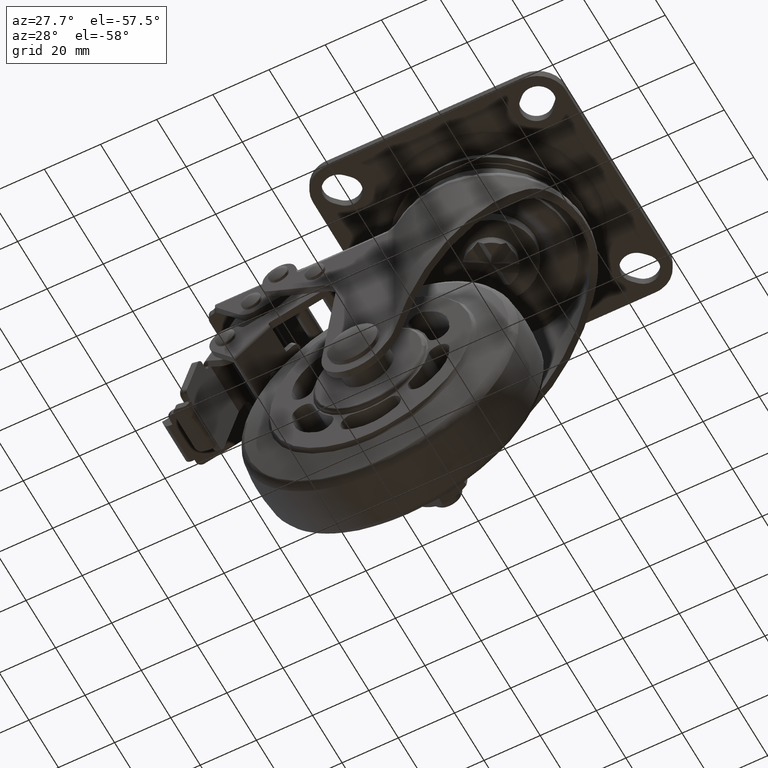
[diagram: clean part render]
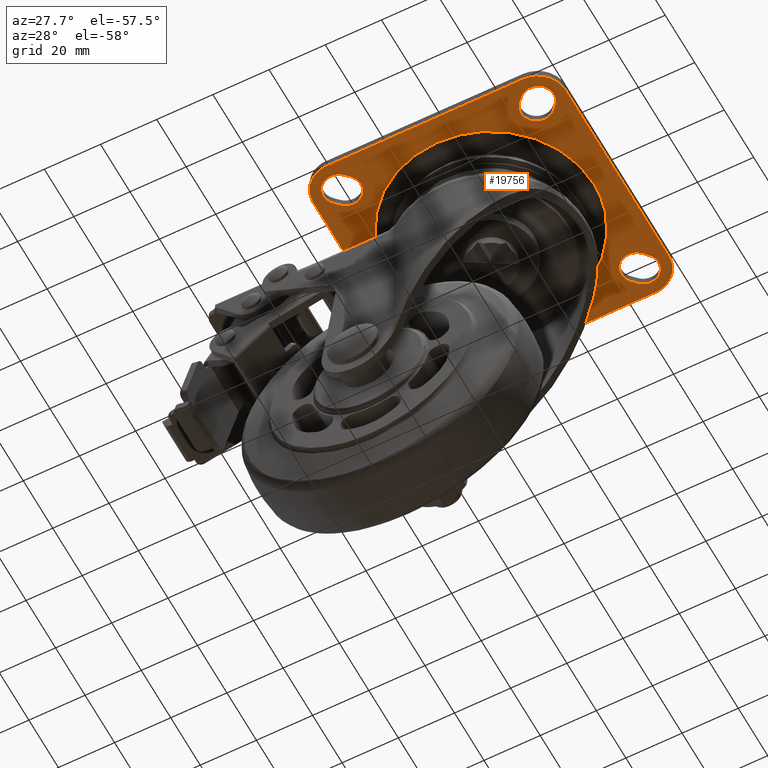
[diagram: same view with one face highlighted and labeled with its STEP entity id]
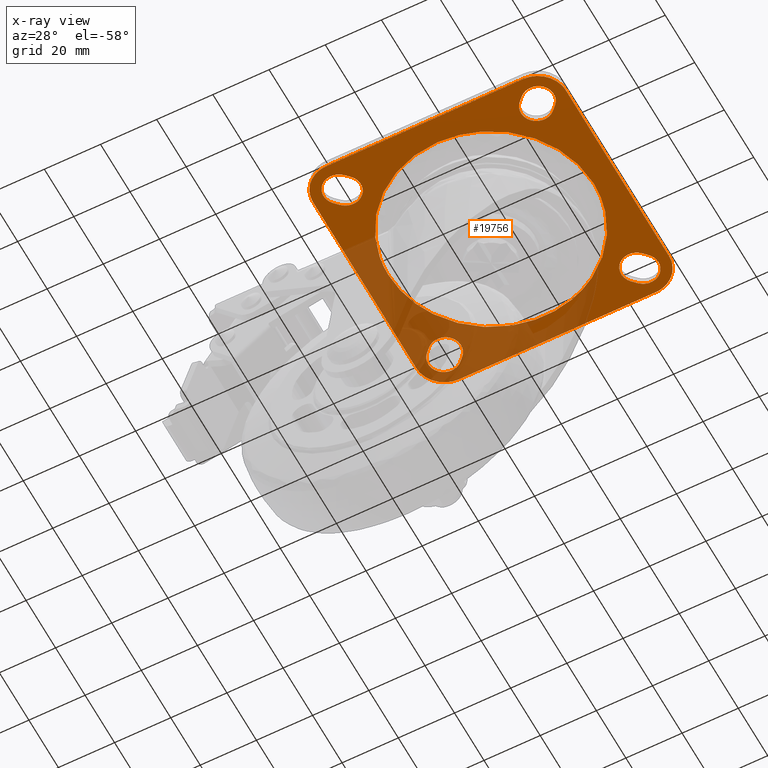
[diagram: x-ray of the same camera — body ghosted, the highlighted face saturated]
A machine part, auxiliary view. The second image highlights one B-rep face of the part: STEP entity #19756.
The next image is the same camera in x-ray: the body ghosted, the highlighted face saturated — about 32% of this face is hidden behind the body in this view.
In plain terms, the highlighted face is a freeform B-spline surface patch.
Its self-contained STEP definition (entity closure, byte-faithful):
#18615=CARTESIAN_POINT('',(54.613267598946372,30.905564446018548,79.000007999975196));
#18616=VERTEX_POINT('',#18615);
#18627=CARTESIAN_POINT('',(71.603745431800704,0.0,79.000007999999994));
#18628=VERTEX_POINT('',#18627);
#18629=CARTESIAN_POINT('',(54.613267598946372,30.905564446018548,79.000007999975196));
#18630=CARTESIAN_POINT('',(56.555310713759368,29.673472720682000,79.000007999978024));
#18631=CARTESIAN_POINT('',(59.216923888092417,27.608265899841470,79.000007999981932));
#18632=CARTESIAN_POINT('',(62.836068395319941,23.902882047228889,79.000007999987290));
#18633=CARTESIAN_POINT('',(65.473038450258272,20.475678680775939,79.000007999990970));
#18634=CARTESIAN_POINT('',(67.627929731302928,16.731772771005911,79.000007999994281));
#18635=CARTESIAN_POINT('',(69.271315206602210,13.053663399226791,79.000007999996811));
#18636=CARTESIAN_POINT('',(70.547244996614424,9.126980863319391,79.000007999997734));
#18637=CARTESIAN_POINT('',(71.410792505331543,4.599745971670136,79.000008000001714));
#18638=CARTESIAN_POINT('',(71.603794586529531,1.533250048020803,79.000007999996981));
#18639=CARTESIAN_POINT('',(71.603745431800704,0.0,79.000007999999994));
#18640=B_SPLINE_CURVE_WITH_KNOTS('',3,(#18629,#18630,#18631,#18632,#18633,#18634,#18635,#18636,#18637,#18638,#18639),.UNSPECIFIED.,.F.,.U.,(4,1,1,1,1,1,1,1,4),(0.000000023397284,6.899653552784507,10.062006840978670,15.524238358012600,19.836488489246850,22.998851644783059,27.598644798269252,32.198437951754762,36.798193054220981),.UNSPECIFIED.);
#18641=EDGE_CURVE('',#18616,#18628,#18640,.T.);
#18643=CARTESIAN_POINT('',(34.999998184335809,-36.603745431800647,79.000007999999994));
#18644=VERTEX_POINT('',#18643);
#18645=CARTESIAN_POINT('',(71.603745431800704,0.0,79.000007999999994));
#18646=CARTESIAN_POINT('',(71.604026945226238,-2.320848732394698,79.000007999999966));
#18647=CARTESIAN_POINT('',(71.217921524355063,-6.363511431477383,79.000008000000236));
#18648=CARTESIAN_POINT('',(69.882633525799250,-11.367018365973760,79.000007999999795));
#18649=CARTESIAN_POINT('',(68.225718549003446,-15.547363186698950,79.000007999999568));
#18650=CARTESIAN_POINT('',(65.926668416587646,-19.848924916474129,79.000008000001344));
#18651=CARTESIAN_POINT('',(62.496674125491268,-24.414986643531140,79.000007999997209));
#18652=CARTESIAN_POINT('',(58.688990316851871,-28.039988102676030,79.000008000000733));
#18653=CARTESIAN_POINT('',(54.455534479346873,-31.139711167007398,79.000007999999568));
#18654=CARTESIAN_POINT('',(49.567834669595364,-33.791080383467133,79.000007999999980));
#18655=CARTESIAN_POINT('',(42.785832611237133,-36.031607869478968,79.000008000000406));
#18656=CARTESIAN_POINT('',(37.770087043394653,-36.604276695405993,79.000008000000221));
#18657=CARTESIAN_POINT('',(34.999998184335809,-36.603745431800647,79.000007999999994));
#18658=B_SPLINE_CURVE_WITH_KNOTS('',3,(#18645,#18646,#18647,#18648,#18649,#18650,#18651,#18652,#18653,#18654,#18655,#18656,#18657),.UNSPECIFIED.,.F.,.U.,(4,1,1,1,1,1,1,1,1,1,4),(0.000000089270806,6.962505909904124,12.128290186633739,15.497276114479689,20.438440080869931,26.727234162567061,32.566724650595937,36.160279672156207,42.449042403232490,49.186998220636362,57.497120090698672),.UNSPECIFIED.);
#18659=EDGE_CURVE('',#18628,#18644,#18658,.T.);
#18661=CARTESIAN_POINT('',(-1.603745431800696,0.0,79.000007999999994));
#18662=VERTEX_POINT('',#18661);
#18663=CARTESIAN_POINT('',(34.999998184335809,-36.603745431800647,79.000007999999994));
#18664=CARTESIAN_POINT('',(33.652429123181719,-36.603763548650043,79.000008000000065));
#18665=CARTESIAN_POINT('',(30.508062452533920,-36.429953281680611,79.000007999999923));
#18666=CARTESIAN_POINT('',(25.120532682218769,-35.427110238917457,79.000007999999994));
#18667=CARTESIAN_POINT('',(19.898141950412828,-33.504139110208079,79.000007999999937));
#18668=CARTESIAN_POINT('',(15.307064914211010,-30.958532806229279,79.000008000000193));
#18669=CARTESIAN_POINT('',(11.902861737014851,-28.497971969577652,79.000007999999596));
#18670=CARTESIAN_POINT('',(8.302213177048804,-25.214593179695790,79.000008000001046));
#18671=CARTESIAN_POINT('',(5.084571700767734,-21.342516481122530,79.000007999999113));
#18672=CARTESIAN_POINT('',(1.959780641368103,-16.129237581723078,79.000008000001515));
#18673=CARTESIAN_POINT('',(-0.035450463958488,-11.095523716912540,79.000007999999482));
#18674=CARTESIAN_POINT('',(-1.317669225627051,-5.465149232980048,79.000008000000022));
#18675=CARTESIAN_POINT('',(-1.603913249846416,-2.021389371324251,79.000008000000136));
#18676=CARTESIAN_POINT('',(-1.603745431800696,0.0,79.000007999999994));
#18677=B_SPLINE_CURVE_WITH_KNOTS('',3,(#18663,#18664,#18665,#18666,#18667,#18668,#18669,#18670,#18671,#18672,#18673,#18674,#18675,#18676),.UNSPECIFIED.,.F.,.U.,(4,1,1,1,1,1,1,1,1,1,1,4),(0.000000089359318,4.042715727334901,9.433120686165147,16.395673144224251,20.663056851058460,25.155038308832840,28.973102644706952,35.261867638725860,40.203048482354092,47.165614060036873,51.432970122402523,57.497118044018883),.UNSPECIFIED.);
#18678=EDGE_CURVE('',#18644,#18662,#18677,.T.);
#18680=CARTESIAN_POINT('',(4.094435553981459,19.613267598946369,79.000007999975210));
#18681=VERTEX_POINT('',#18680);
#18682=CARTESIAN_POINT('',(-1.603745431800696,0.0,79.000007999999994));
#18683=CARTESIAN_POINT('',(-1.603841846170542,1.832723031713598,79.000007999999738));
#18684=CARTESIAN_POINT('',(-1.319803878921320,5.605939413800518,79.000007999999099));
#18685=CARTESIAN_POINT('',(-0.063931164851939,10.976621362004749,79.000007999993485));
#18686=CARTESIAN_POINT('',(1.820030477845950,15.693933595670041,79.000007999984547));
#18687=CARTESIAN_POINT('',(3.343460307687357,18.429964126323569,79.000007999979346));
#18688=CARTESIAN_POINT('',(4.094435553981459,19.613267598946369,79.000007999975210));
#18689=B_SPLINE_CURVE_WITH_KNOTS('',3,(#18682,#18683,#18684,#18685,#18686,#18687,#18688),.UNSPECIFIED.,.F.,.U.,(4,1,1,1,4),(2.782784E-009,5.498171282881536,11.319763781959610,16.494513902863950,20.698997723644819),.UNSPECIFIED.);
#18690=EDGE_CURVE('',#18662,#18681,#18689,.T.);
#18790=CARTESIAN_POINT('',(4.094435553981459,19.613267598946369,79.000007999975210));
#18791=CARTESIAN_POINT('',(5.097214646081564,21.193609933744568,79.000007999978024));
#18792=CARTESIAN_POINT('',(7.211077641337238,24.019511093499659,79.000007999983353));
#18793=CARTESIAN_POINT('',(11.247431718147640,28.048146972836939,79.000007999989862));
#18794=CARTESIAN_POINT('',(15.444258343042570,31.095003665738290,79.000007999993642));
#18795=CARTESIAN_POINT('',(20.621722388540942,33.815161469819628,79.000007999998900));
#18796=CARTESIAN_POINT('',(25.667087858393710,35.562786859572107,79.000007999997706));
#18797=CARTESIAN_POINT('',(31.508793783046809,36.570302173776810,79.000007999998445));
#18798=CARTESIAN_POINT('',(36.314105488615503,36.683595457965311,79.000007999997266));
#18799=CARTESIAN_POINT('',(40.786587919222278,36.210807041227817,79.000007999992349));
#18800=CARTESIAN_POINT('',(44.526899755036091,35.415151882585242,79.000007999989577));
#18801=CARTESIAN_POINT('',(49.299533641468472,33.849580767618761,79.000007999984177));
#18802=CARTESIAN_POINT('',(52.590677254625021,32.189560976770217,79.000007999981364));
#18803=CARTESIAN_POINT('',(54.613267598946372,30.905564446018548,79.000007999975196));
#18804=B_SPLINE_CURVE_WITH_KNOTS('',3,(#18790,#18791,#18792,#18793,#18794,#18795,#18796,#18797,#18798,#18799,#18800,#18801,#18802,#18803),.UNSPECIFIED.,.F.,.U.,(4,1,1,1,1,1,1,1,1,1,1,4),(0.000000089468152,5.614916742008226,10.556093663526481,17.069471235471070,21.112224858043980,28.074797747164240,33.015876002400617,38.855453821431453,42.449041647657978,46.491821824096569,50.310014771044763,57.497119067316632),.UNSPECIFIED.);
#18805=EDGE_CURVE('',#18681,#18616,#18804,.T.);
#19347=CARTESIAN_POINT('',(-14.495499825562540,49.495499825562533,79.000007999999994));
#19348=CARTESIAN_POINT('',(84.495502239550646,49.495499825562533,79.000007999999994));
#19349=CARTESIAN_POINT('',(-14.495499825562540,-49.495502239550653,79.000007999999994));
#19350=CARTESIAN_POINT('',(84.495502239550646,-49.495502239550653,79.000007999999994));
#19351=B_SPLINE_SURFACE_WITH_KNOTS('',1,1,((#19347,#19349),(#19348,#19350)),.UNSPECIFIED.,.F.,.F.,.U.,(2,2),(2,2),(0.0,98.991002065113179),(0.0,98.991002065113179),.UNSPECIFIED.);
#19352=CARTESIAN_POINT('',(80.0,35.0,79.000007999999994));
#19353=VERTEX_POINT('',#19352);
#19354=CARTESIAN_POINT('',(70.0,45.0,79.000007999999994));
#19355=VERTEX_POINT('',#19354);
#19356=CARTESIAN_POINT('',(80.0,35.0,79.000007999999994));
#19357=CARTESIAN_POINT('',(80.000073907968613,35.654488945471627,79.000008000000108));
#19358=CARTESIAN_POINT('',(79.867023230522705,37.004367228682113,79.000007999999681));
#19359=CARTESIAN_POINT('',(79.209497551188122,39.125826772463860,79.000008000000378));
#19360=CARTESIAN_POINT('',(78.034143133678441,41.114244687521321,79.000007999999724));
#19361=CARTESIAN_POINT('',(76.338292263899874,42.852220574667271,79.000008000000761));
#19362=CARTESIAN_POINT('',(74.423159077679401,44.064941585787011,79.000007999999468));
#19363=CARTESIAN_POINT('',(72.249772190104053,44.827454906135067,79.000008000000747));
#19364=CARTESIAN_POINT('',(70.777227325805129,45.000144159784767,79.000007999999212));
#19365=CARTESIAN_POINT('',(70.0,45.0,79.000007999999994));
#19366=B_SPLINE_CURVE_WITH_KNOTS('',3,(#19356,#19357,#19358,#19359,#19360,#19361,#19362,#19363,#19364,#19365),.UNSPECIFIED.,.F.,.U.,(4,1,1,1,1,1,1,4),(0.000000162030521,1.963473488997209,4.049735908099901,6.626885396654943,8.835779466863569,11.290160716892750,13.376402627561211,15.708061828758940),.UNSPECIFIED.);
#19367=EDGE_CURVE('',#19353,#19355,#19366,.T.);
#19368=ORIENTED_EDGE('',*,*,#19367,.F.);
#19369=CARTESIAN_POINT('',(80.0,-35.0,79.000007999999994));
#19370=VERTEX_POINT('',#19369);
#19371=CARTESIAN_POINT('',(80.0,-35.0,79.000007999999994));
#19372=CARTESIAN_POINT('',(80.0,35.0,79.000007999999994));
#19373=QUASI_UNIFORM_CURVE('',1,(#19371,#19372),.UNSPECIFIED.,.F.,.U.);
#19374=EDGE_CURVE('',#19370,#19353,#19373,.T.);
#19375=ORIENTED_EDGE('',*,*,#19374,.F.);
#19376=CARTESIAN_POINT('',(70.0,-45.0,79.000007999999994));
#19377=VERTEX_POINT('',#19376);
#19378=CARTESIAN_POINT('',(70.0,-45.0,79.000007999999994));
#19379=CARTESIAN_POINT('',(70.654491713493385,-45.000083564249380,79.000007999999852));
#19380=CARTESIAN_POINT('',(71.840729655913378,-44.883093706141580,79.000008000000363));
#19381=CARTESIAN_POINT('',(73.735952833826801,-44.346249776582830,79.000007999999923));
#19382=CARTESIAN_POINT('',(75.386183723378181,-43.502777694459901,79.000007999999681));
#19383=CARTESIAN_POINT('',(76.995996078140109,-42.230513810341002,79.000008000000406));
#19384=CARTESIAN_POINT('',(78.393959541517816,-40.610058543014922,79.000007999999823));
#19385=CARTESIAN_POINT('',(79.388853167542479,-38.663513669082420,79.000007999999994));
#19386=CARTESIAN_POINT('',(79.901318878623826,-36.718016581546571,79.000008000000037));
#19387=CARTESIAN_POINT('',(80.000045159082930,-35.572675513106489,79.000008000000506));
#19388=CARTESIAN_POINT('',(80.0,-35.0,79.000007999999994));
#19389=B_SPLINE_CURVE_WITH_KNOTS('',3,(#19378,#19379,#19380,#19381,#19382,#19383,#19384,#19385,#19386,#19387,#19388),.UNSPECIFIED.,.F.,.U.,(4,1,1,1,1,1,1,1,4),(0.000000162004154,1.963473488975795,3.558856671220649,5.890528280057204,7.485920371103386,9.694802587288667,12.271932114299780,13.990030007249290,15.708061828758900),.UNSPECIFIED.);
#19390=EDGE_CURVE('',#19377,#19370,#19389,.T.);
#19391=ORIENTED_EDGE('',*,*,#19390,.F.);
#19392=CARTESIAN_POINT('',(-0.000000523598811,-45.0,79.000007999999994));
#19393=VERTEX_POINT('',#19392);
#19394=CARTESIAN_POINT('',(-0.000000523598811,-45.0,79.000007999999994));
#19395=CARTESIAN_POINT('',(70.0,-45.0,79.000007999999994));
#19396=QUASI_UNIFORM_CURVE('',1,(#19394,#19395),.UNSPECIFIED.,.F.,.U.);
#19397=EDGE_CURVE('',#19393,#19377,#19396,.T.);
#19398=ORIENTED_EDGE('',*,*,#19397,.F.);
#19399=CARTESIAN_POINT('',(-10.0,-35.0,79.000007999999994));
#19400=VERTEX_POINT('',#19399);
#19401=CARTESIAN_POINT('',(-10.0,-35.0,79.000007999999994));
#19402=CARTESIAN_POINT('',(-10.000087719365281,-35.654494619467052,79.000008000000108));
#19403=CARTESIAN_POINT('',(-9.875052239546488,-36.922547782301969,79.000007999999909));
#19404=CARTESIAN_POINT('',(-9.314351404740435,-38.812987640436610,79.000007999999809));
#19405=CARTESIAN_POINT('',(-8.451840209598522,-40.450553902006959,79.000008000000435));
#19406=CARTESIAN_POINT('',(-7.128824911233999,-42.124901798963911,79.000007999999895));
#19407=CARTESIAN_POINT('',(-5.469561627012606,-43.486616478168777,79.000007999999880));
#19408=CARTESIAN_POINT('',(-3.430478861005152,-44.466183805952497,79.000007999999596));
#19409=CARTESIAN_POINT('',(-1.636246830333949,-44.915557114707987,79.000008000000477));
#19410=CARTESIAN_POINT('',(-0.490867129498766,-45.000008033708703,79.000007999999852));
#19411=CARTESIAN_POINT('',(-0.000000523598811,-45.0,79.000007999999994));
#19412=B_SPLINE_CURVE_WITH_KNOTS('',3,(#19401,#19402,#19403,#19404,#19405,#19406,#19407,#19408,#19409,#19410,#19411),.UNSPECIFIED.,.F.,.U.,(4,1,1,1,1,1,1,1,4),(0.000000162090448,1.963473452165475,3.804294831523768,5.890528169568537,7.485920230384032,10.185690012094121,12.271931883708019,14.235442829655661,15.708061533648239),.UNSPECIFIED.);
#19413=EDGE_CURVE('',#19400,#19393,#19412,.T.);
#19414=ORIENTED_EDGE('',*,*,#19413,.F.);
#19415=CARTESIAN_POINT('',(-10.0,34.999999127335300,79.000007999999994));
#19416=VERTEX_POINT('',#19415);
#19417=CARTESIAN_POINT('',(-10.0,34.999999127335300,79.000007999999994));
#19418=CARTESIAN_POINT('',(-10.0,-35.0,79.000007999999994));
#19419=QUASI_UNIFORM_CURVE('',1,(#19417,#19418),.UNSPECIFIED.,.F.,.U.);
#19420=EDGE_CURVE('',#19416,#19400,#19419,.T.);
#19421=ORIENTED_EDGE('',*,*,#19420,.F.);
#19422=CARTESIAN_POINT('',(0.0,45.0,79.000007999999994));
#19423=VERTEX_POINT('',#19422);
#19424=CARTESIAN_POINT('',(0.0,45.0,79.000007999999994));
#19425=CARTESIAN_POINT('',(-0.654493621104882,45.000087204553843,79.000008000000037));
#19426=CARTESIAN_POINT('',(-1.922548140982958,44.875051779595012,79.000007999999895));
#19427=CARTESIAN_POINT('',(-3.812990438692153,44.314354172619687,79.000008000000065));
#19428=CARTESIAN_POINT('',(-5.450576844904203,43.451856365813349,79.000008000000108));
#19429=CARTESIAN_POINT('',(-6.899337997425581,42.306792718092360,79.000007999999610));
#19430=CARTESIAN_POINT('',(-8.269547663141669,40.776571859568882,79.000008000000179));
#19431=CARTESIAN_POINT('',(-9.304631255347635,38.896129306924472,79.000007999999937));
#19432=CARTESIAN_POINT('',(-9.886663822560374,36.840731712888847,79.000008000000079));
#19433=CARTESIAN_POINT('',(-10.000061135719999,35.613588896330008,79.000007999999909));
#19434=CARTESIAN_POINT('',(-10.0,34.999999127335300,79.000007999999994));
#19435=B_SPLINE_CURVE_WITH_KNOTS('',3,(#19424,#19425,#19426,#19427,#19428,#19429,#19430,#19431,#19432,#19433,#19434),.UNSPECIFIED.,.F.,.U.,(4,1,1,1,1,1,1,1,4),(0.000000161852675,1.963473550318764,3.804295021906183,5.890528464199390,7.485920605631939,9.326650025769581,12.026485992671390,13.867290678295850,15.708062320610400),.UNSPECIFIED.);
#19436=EDGE_CURVE('',#19423,#19416,#19435,.T.);
#19437=ORIENTED_EDGE('',*,*,#19436,.F.);
#19438=CARTESIAN_POINT('',(70.0,45.0,79.000007999999994));
#19439=CARTESIAN_POINT('',(0.0,45.0,79.000007999999994));
#19440=QUASI_UNIFORM_CURVE('',1,(#19438,#19439),.UNSPECIFIED.,.F.,.U.);
#19441=EDGE_CURVE('',#19355,#19423,#19440,.T.);
#19442=ORIENTED_EDGE('',*,*,#19441,.F.);
#19443=EDGE_LOOP('',(#19368,#19375,#19391,#19398,#19414,#19421,#19437,#19442));
#19444=FACE_OUTER_BOUND('',#19443,.T.);
#19445=CARTESIAN_POINT('',(3.389087228648650,39.389087364403352,79.000007999999994));
#19446=VERTEX_POINT('',#19445);
#19447=CARTESIAN_POINT('',(4.889087228648620,37.889087364403402,79.000007999999994));
#19448=VERTEX_POINT('',#19447);
#19449=CARTESIAN_POINT('',(3.389087228648650,39.389087364403352,79.000007999999994));
#19450=CARTESIAN_POINT('',(4.889087228648620,37.889087364403402,79.000007999999994));
#19451=QUASI_UNIFORM_CURVE('',1,(#19449,#19450),.UNSPECIFIED.,.F.,.U.);
#19452=EDGE_CURVE('',#19446,#19448,#19451,.T.);
#19453=ORIENTED_EDGE('',*,*,#19452,.F.);
#19454=CARTESIAN_POINT('',(-4.389088323057218,39.389086269994081,79.000007999999994));
#19455=VERTEX_POINT('',#19454);
#19456=CARTESIAN_POINT('',(3.389087228648650,39.389087364403352,79.000007999999994));
#19457=CARTESIAN_POINT('',(3.055098324279005,39.723279301758552,79.000008000000506));
#19458=CARTESIAN_POINT('',(2.336185186602843,40.276958136937523,79.000007999999170));
#19459=CARTESIAN_POINT('',(1.131857726500865,40.802043234911707,79.000008000000449));
#19460=CARTESIAN_POINT('',(-0.203388453981213,41.050716403090512,79.000007999999625));
#19461=CARTESIAN_POINT('',(-1.382240818225911,40.971029110265633,79.000008000000847));
#19462=CARTESIAN_POINT('',(-2.532128906720855,40.645117858646309,79.000007999999127));
#19463=CARTESIAN_POINT('',(-3.485979432978963,40.172291785012760,79.000008000000335));
#19464=CARTESIAN_POINT('',(-4.118680349036415,39.659562838249570,79.000007999999994));
#19465=CARTESIAN_POINT('',(-4.389088323057218,39.389086269994081,79.000007999999994));
#19466=B_SPLINE_CURVE_WITH_KNOTS('',3,(#19456,#19457,#19458,#19459,#19460,#19461,#19462,#19463,#19464,#19465),.UNSPECIFIED.,.F.,.U.,(4,1,1,1,1,1,1,4),(0.000000205425907,1.417387268921277,2.699837969852504,3.914793950122056,5.467111641987454,6.209585932279865,7.492040017143624,8.639434363327512),.UNSPECIFIED.);
#19467=EDGE_CURVE('',#19446,#19455,#19466,.T.);
#19468=ORIENTED_EDGE('',*,*,#19467,.T.);
#19469=CARTESIAN_POINT('',(-4.389086000000001,31.610914000000040,79.000007999999994));
#19470=VERTEX_POINT('',#19469);
#19471=CARTESIAN_POINT('',(-4.389088323057218,39.389086269994081,79.000007999999994));
#19472=CARTESIAN_POINT('',(-4.659555491126680,39.118668605058389,79.000008000000079));
#19473=CARTESIAN_POINT('',(-5.229342674662291,38.415711125186590,79.000007999999923));
#19474=CARTESIAN_POINT('',(-5.785604509680929,37.220928273118822,79.000008000000022));
#19475=CARTESIAN_POINT('',(-6.013271795639411,35.996907582543344,79.000008000000122));
#19476=CARTESIAN_POINT('',(-5.999425763980547,34.867921374764073,79.000007999999468));
#19477=CARTESIAN_POINT('',(-5.774435483181895,33.804975636045647,79.000008000001159));
#19478=CARTESIAN_POINT('',(-5.261379730992126,32.647565546629579,79.000007999998459));
#19479=CARTESIAN_POINT('',(-4.739201355990047,31.960801957857331,79.000008000000548));
#19480=CARTESIAN_POINT('',(-4.389086000000001,31.610914000000040,79.000007999999994));
#19481=B_SPLINE_CURVE_WITH_KNOTS('',3,(#19471,#19472,#19473,#19474,#19475,#19476,#19477,#19478,#19479,#19480),.UNSPECIFIED.,.F.,.U.,(4,1,1,1,1,1,1,4),(0.000000206227456,1.147409377229230,2.699837152982105,3.914792764930660,4.859630259466681,6.074590765410894,7.154536857788865,8.639431747543750),.UNSPECIFIED.);
#19482=EDGE_CURVE('',#19455,#19470,#19481,.T.);
#19483=ORIENTED_EDGE('',*,*,#19482,.T.);
#19484=CARTESIAN_POINT('',(-2.889087296525990,30.110912703473950,79.000007999999994));
#19485=VERTEX_POINT('',#19484);
#19486=CARTESIAN_POINT('',(-2.889087296525990,30.110912703473950,79.000007999999994));
#19487=CARTESIAN_POINT('',(-4.389086000000001,31.610914000000040,79.000007999999994));
#19488=QUASI_UNIFORM_CURVE('',1,(#19486,#19487),.UNSPECIFIED.,.F.,.U.);
#19489=EDGE_CURVE('',#19485,#19470,#19488,.T.);
#19490=ORIENTED_EDGE('',*,*,#19489,.F.);
#19491=CARTESIAN_POINT('',(4.889087342201306,30.110912749149289,79.000007999999980));
#19492=VERTEX_POINT('',#19491);
#19493=CARTESIAN_POINT('',(-2.889087296525990,30.110912703473950,79.000007999999994));
#19494=CARTESIAN_POINT('',(-2.555080533373291,29.776754833366429,79.000007999999966));
#19495=CARTESIAN_POINT('',(-1.764345029301170,29.167550867857059,79.000008000000477));
#19496=CARTESIAN_POINT('',(-0.459503242915323,28.636345288663481,79.000007999998559));
#19497=CARTESIAN_POINT('',(0.796640422228881,28.465926517314351,79.000008000002182));
#19498=CARTESIAN_POINT('',(1.946310795769875,28.543634914953081,79.000007999998431));
#19499=CARTESIAN_POINT('',(2.906180183911404,28.809272490325451,79.000008000000221));
#19500=CARTESIAN_POINT('',(3.942798980214223,29.307352648186040,79.000008000001557));
#19501=CARTESIAN_POINT('',(4.539198351572569,29.760789884785119,79.000007999998871));
#19502=CARTESIAN_POINT('',(4.889087342201306,30.110912749149289,79.000007999999980));
#19503=B_SPLINE_CURVE_WITH_KNOTS('',3,(#19493,#19494,#19495,#19496,#19497,#19498,#19499,#19500,#19501,#19502),.UNSPECIFIED.,.F.,.U.,(4,1,1,1,1,1,1,4),(0.000000205965737,1.417387216606544,2.969815818072879,4.184753146777508,5.197134105830720,6.412079451530653,7.154538758477041,8.639434042239317),.UNSPECIFIED.);
#19504=EDGE_CURVE('',#19485,#19492,#19503,.T.);
#19505=ORIENTED_EDGE('',*,*,#19504,.T.);
#19506=CARTESIAN_POINT('',(4.889087342201306,30.110912749149289,79.000007999999980));
#19507=CARTESIAN_POINT('',(5.223245070723703,30.444919452044012,79.000007999999994));
#19508=CARTESIAN_POINT('',(5.832449672715840,31.235655139321139,79.000007999999809));
#19509=CARTESIAN_POINT('',(6.363636434777557,32.540494136456623,79.000008000000022));
#19510=CARTESIAN_POINT('',(6.561617162362553,33.998548744560850,79.000008000000307));
#19511=CARTESIAN_POINT('',(6.400218564128740,35.307659300866369,79.000008000000008));
#19512=CARTESIAN_POINT('',(5.863065048257463,36.699760297963202,79.000007999999795));
#19513=CARTESIAN_POINT('',(5.302989728717164,37.475672755516477,79.000008000000776));
#19514=CARTESIAN_POINT('',(4.889087228648620,37.889087364403402,79.000007999999994));
#19515=B_SPLINE_CURVE_WITH_KNOTS('',3,(#19506,#19507,#19508,#19509,#19510,#19511,#19512,#19513,#19514),.UNSPECIFIED.,.F.,.U.,(4,1,1,1,1,1,4),(0.000000205958507,1.417387213529731,2.969815811631286,4.184753137689488,5.804612404637249,6.884558781507911,8.639434023529429),.UNSPECIFIED.);
#19516=EDGE_CURVE('',#19492,#19448,#19515,.T.);
#19517=ORIENTED_EDGE('',*,*,#19516,.T.);
#19518=EDGE_LOOP('',(#19453,#19468,#19483,#19490,#19505,#19517));
#19519=FACE_BOUND('',#19518,.T.);
#19520=CARTESIAN_POINT('',(66.607738373298801,-39.385910373298699,79.000007999999994));
#19521=VERTEX_POINT('',#19520);
#19522=CARTESIAN_POINT('',(65.110912431964309,-37.889087025016451,79.000007999999994));
#19523=VERTEX_POINT('',#19522);
#19524=CARTESIAN_POINT('',(66.607738373298801,-39.385910373298699,79.000007999999994));
#19525=CARTESIAN_POINT('',(65.110912431964309,-37.889087025016451,79.000007999999994));
#19526=QUASI_UNIFORM_CURVE('',1,(#19524,#19525),.UNSPECIFIED.,.F.,.U.);
#19527=EDGE_CURVE('',#19521,#19523,#19526,.T.);
#19528=ORIENTED_EDGE('',*,*,#19527,.F.);
#19529=CARTESIAN_POINT('',(74.387499522393810,-39.390674422200789,79.000007999999994));
#19530=VERTEX_POINT('',#19529);
#19531=CARTESIAN_POINT('',(66.607738373298801,-39.385910373298699,79.000007999999994));
#19532=CARTESIAN_POINT('',(66.877995801908995,-39.656686249061757,79.000008000000008));
#19533=CARTESIAN_POINT('',(67.492899008127992,-40.155765488624262,79.000007999999966));
#19534=CARTESIAN_POINT('',(68.422850084545487,-40.624739341531843,79.000008000000491));
#19535=CARTESIAN_POINT('',(69.395775271310185,-40.914056276221167,79.000007999999028));
#19536=CARTESIAN_POINT('',(70.338288020088356,-41.030944483150002,79.000008000001827));
#19537=CARTESIAN_POINT('',(71.443210420080234,-40.956923406941300,79.000007999998729));
#19538=CARTESIAN_POINT('',(72.403490743813649,-40.691746502318622,79.000008000000534));
#19539=CARTESIAN_POINT('',(73.440606766108161,-40.194008253552347,79.000007999999781));
#19540=CARTESIAN_POINT('',(74.037380900446692,-39.740757793626067,79.000007999999966));
#19541=CARTESIAN_POINT('',(74.387499522393810,-39.390674422200789,79.000007999999994));
#19542=B_SPLINE_CURVE_WITH_KNOTS('',3,(#19531,#19532,#19533,#19534,#19535,#19536,#19537,#19538,#19539,#19540,#19541),.UNSPECIFIED.,.F.,.U.,(4,1,1,1,1,1,1,1,4),(0.000000206262053,1.147704755549581,2.362960223420184,3.105604897948387,4.185840696148085,5.198484983342862,6.413746150786556,7.156398453737694,8.641679703932713),.UNSPECIFIED.);
#19543=EDGE_CURVE('',#19521,#19530,#19542,.T.);
#19544=ORIENTED_EDGE('',*,*,#19543,.T.);
#19545=CARTESIAN_POINT('',(74.389088999999899,-31.610912000000098,79.000007999999994));
#19546=VERTEX_POINT('',#19545);
#19547=CARTESIAN_POINT('',(74.387499522393810,-39.390674422200789,79.000007999999994));
#19548=CARTESIAN_POINT('',(74.721848172305286,-39.056704818619423,79.000007999999937));
#19549=CARTESIAN_POINT('',(75.359377387074133,-38.230109354843719,79.000008000000278));
#19550=CARTESIAN_POINT('',(75.884246256723372,-36.895092743508229,79.000007999999227));
#19551=CARTESIAN_POINT('',(76.031682415339802,-35.636529438004260,79.000008000001273));
#19552=CARTESIAN_POINT('',(75.950488197622519,-34.532732809349831,79.000007999999212));
#19553=CARTESIAN_POINT('',(75.660819495844407,-33.485247644818010,79.000007999999994));
#19554=CARTESIAN_POINT('',(75.129690623683970,-32.461553952365669,79.000008000000776));
#19555=CARTESIAN_POINT('',(74.659647643655731,-31.881383756823539,79.000007999998772));
#19556=CARTESIAN_POINT('',(74.389088999999899,-31.610912000000098,79.000007999999994));
#19557=B_SPLINE_CURVE_WITH_KNOTS('',3,(#19547,#19548,#19549,#19550,#19551,#19552,#19553,#19554,#19555,#19556),.UNSPECIFIED.,.F.,.U.,(4,1,1,1,1,1,1,4),(0.000000206219994,1.417754492920412,3.105604886129564,4.253388727965157,5.198484963591699,6.413746126428906,7.493987143706975,8.641679671131843),.UNSPECIFIED.);
#19558=EDGE_CURVE('',#19530,#19546,#19557,.T.);
#19559=ORIENTED_EDGE('',*,*,#19558,.T.);
#19560=CARTESIAN_POINT('',(72.889087228648492,-30.110912635596652,79.000007999999994));
#19561=VERTEX_POINT('',#19560);
#19562=CARTESIAN_POINT('',(72.889087228648492,-30.110912635596652,79.000007999999994));
#19563=CARTESIAN_POINT('',(74.389088999999899,-31.610912000000098,79.000007999999994));
#19564=QUASI_UNIFORM_CURVE('',1,(#19562,#19563),.UNSPECIFIED.,.F.,.U.);
#19565=EDGE_CURVE('',#19561,#19546,#19564,.T.);
#19566=ORIENTED_EDGE('',*,*,#19565,.F.);
#19567=CARTESIAN_POINT('',(65.110911164433730,-30.110914242514870,79.000007999999994));
#19568=VERTEX_POINT('',#19567);
#19569=CARTESIAN_POINT('',(72.889087228648492,-30.110912635596652,79.000007999999994));
#19570=CARTESIAN_POINT('',(72.475641205305536,-29.697039343331870,79.000008000000008));
#19571=CARTESIAN_POINT('',(71.736730341350949,-29.163563601477009,79.000008000000150));
#19572=CARTESIAN_POINT('',(70.562479811093240,-28.694147246324778,79.000007999999838));
#19573=CARTESIAN_POINT('',(69.342991416542247,-28.451224277494600,79.000008000000378));
#19574=CARTESIAN_POINT('',(68.092950428696383,-28.520421946976441,79.000007999999525));
#19575=CARTESIAN_POINT('',(66.904453492901126,-28.881143892182561,79.000007999999966));
#19576=CARTESIAN_POINT('',(65.961311443843499,-29.370477800990841,79.000008000000520));
#19577=CARTESIAN_POINT('',(65.381314020359554,-29.840426718022819,79.000007999999426));
#19578=CARTESIAN_POINT('',(65.110911164433730,-30.110914242514870,79.000007999999994));
#19579=B_SPLINE_CURVE_WITH_KNOTS('',3,(#19569,#19570,#19571,#19572,#19573,#19574,#19575,#19576,#19577,#19578),.UNSPECIFIED.,.F.,.U.,(4,1,1,1,1,1,1,4),(0.000000205563929,1.754882834469328,2.699838224681404,3.779803112526017,5.467112157400234,6.412080294669650,7.492040723775991,8.639435178465865),.UNSPECIFIED.);
#19580=EDGE_CURVE('',#19561,#19568,#19579,.T.);
#19581=ORIENTED_EDGE('',*,*,#19580,.T.);
#19582=CARTESIAN_POINT('',(65.110911164433730,-30.110914242514870,79.000007999999994));
#19583=CARTESIAN_POINT('',(64.665062644260246,-30.556069432460699,79.000008000000165));
#19584=CARTESIAN_POINT('',(64.139858816185480,-31.303108168790828,79.000007999999795));
#19585=CARTESIAN_POINT('',(63.709658963524582,-32.418720998827723,79.000008000000250));
#19586=CARTESIAN_POINT('',(63.517273600966142,-33.300753962170198,79.000007999999852));
#19587=CARTESIAN_POINT('',(63.466549952225861,-34.474584382555541,79.000007999999724));
#19588=CARTESIAN_POINT('',(63.723935018810259,-35.768313007432077,79.000008000001230));
#19589=CARTESIAN_POINT('',(64.327724051271332,-36.985979389996693,79.000007999999085));
#19590=CARTESIAN_POINT('',(64.840435850145354,-37.618678353968747,79.000008000000008));
#19591=CARTESIAN_POINT('',(65.110912431964309,-37.889087025016451,79.000007999999994));
#19592=B_SPLINE_CURVE_WITH_KNOTS('',3,(#19582,#19583,#19584,#19585,#19586,#19587,#19588,#19589,#19590,#19591),.UNSPECIFIED.,.F.,.U.,(4,1,1,1,1,1,1,4),(0.000000206401070,1.889872505033631,2.699837407841208,3.577288231441206,4.589657198063376,6.209584636711816,7.492038454380174,8.639432562680465),.UNSPECIFIED.);
#19593=EDGE_CURVE('',#19568,#19523,#19592,.T.);
#19594=ORIENTED_EDGE('',*,*,#19593,.T.);
#19595=EDGE_LOOP('',(#19528,#19544,#19559,#19566,#19581,#19594));
#19596=FACE_BOUND('',#19595,.T.);
#19597=CARTESIAN_POINT('',(-4.389087296525981,-31.610912703474000,79.000007999999994));
#19598=VERTEX_POINT('',#19597);
#19599=CARTESIAN_POINT('',(-2.889087296525980,-30.110912703473950,79.000007999999994));
#19600=VERTEX_POINT('',#19599);
#19601=CARTESIAN_POINT('',(-4.389087296525981,-31.610912703474000,79.000007999999994));
#19602=CARTESIAN_POINT('',(-2.889087296525980,-30.110912703473950,79.000007999999994));
#19603=QUASI_UNIFORM_CURVE('',1,(#19601,#19602),.UNSPECIFIED.,.F.,.U.);
#19604=EDGE_CURVE('',#19598,#19600,#19603,.T.);
#19605=ORIENTED_EDGE('',*,*,#19604,.F.);
#19606=CARTESIAN_POINT('',(-4.389085433051831,-39.389089159999202,79.000008000000008));
#19607=VERTEX_POINT('',#19606);
#19608=CARTESIAN_POINT('',(-4.389087296525981,-31.610912703474000,79.000007999999994));
#19609=CARTESIAN_POINT('',(-4.866835203735159,-32.087823877176881,79.000008000000250));
#19610=CARTESIAN_POINT('',(-5.500232421522878,-33.012839132007208,79.000007999999383));
#19611=CARTESIAN_POINT('',(-5.956306464713440,-34.484113637053923,79.000008000000363));
#19612=CARTESIAN_POINT('',(-6.041855086510784,-35.749734838957643,79.000008000000207));
#19613=CARTESIAN_POINT('',(-5.861993571061065,-36.867113489196001,79.000007999999468));
#19614=CARTESIAN_POINT('',(-5.398069898776713,-38.139459776392883,79.000007999999838));
#19615=CARTESIAN_POINT('',(-4.850858327357944,-38.928025828089737,79.000008000000648));
#19616=CARTESIAN_POINT('',(-4.389085433051831,-39.389089159999202,79.000008000000008));
#19617=B_SPLINE_CURVE_WITH_KNOTS('',3,(#19608,#19609,#19610,#19611,#19612,#19613,#19614,#19615,#19616),.UNSPECIFIED.,.F.,.U.,(4,1,1,1,1,1,4),(0.000000206066279,2.024866006941010,3.307317833886965,4.589659122292693,5.804613854846332,6.682067267261353,8.639436182241262),.UNSPECIFIED.);
#19618=EDGE_CURVE('',#19598,#19607,#19617,.T.);
#19619=ORIENTED_EDGE('',*,*,#19618,.T.);
#19620=CARTESIAN_POINT('',(3.389091000000000,-39.389088000000051,79.000007999999994));
#19621=VERTEX_POINT('',#19620);
#19622=CARTESIAN_POINT('',(-4.389085433051831,-39.389089159999202,79.000008000000008));
#19623=CARTESIAN_POINT('',(-4.055078330037897,-39.723247761467690,79.000007999999951));
#19624=CARTESIAN_POINT('',(-3.264343778088254,-40.332447572084817,79.000007999999966));
#19625=CARTESIAN_POINT('',(-1.959498929911334,-40.863664987998597,79.000008000000051));
#19626=CARTESIAN_POINT('',(-0.703358634650759,-41.034062045909877,79.000008000000165));
#19627=CARTESIAN_POINT('',(0.446309092584789,-40.956375381476292,79.000008000000150));
#19628=CARTESIAN_POINT('',(1.406192364030301,-40.690737418376173,79.000008000000875));
#19629=CARTESIAN_POINT('',(2.442791196187189,-40.192620947739933,79.000007999999013));
#19630=CARTESIAN_POINT('',(3.039206229036300,-39.739222545081653,79.000008000000591));
#19631=CARTESIAN_POINT('',(3.389091000000000,-39.389088000000051,79.000007999999994));
#19632=B_SPLINE_CURVE_WITH_KNOTS('',3,(#19622,#19623,#19624,#19625,#19626,#19627,#19628,#19629,#19630,#19631),.UNSPECIFIED.,.F.,.U.,(4,1,1,1,1,1,1,4),(0.000000206069780,1.417387564696973,2.969816547257365,4.184754173983553,5.197135381584420,6.412081025968278,7.154540515025301,8.639436163531029),.UNSPECIFIED.);
#19633=EDGE_CURVE('',#19607,#19621,#19632,.T.);
#19634=ORIENTED_EDGE('',*,*,#19633,.T.);
#19635=CARTESIAN_POINT('',(4.889087228648651,-37.889087364403352,79.000007999999994));
#19636=VERTEX_POINT('',#19635);
#19637=CARTESIAN_POINT('',(4.889087228648651,-37.889087364403352,79.000007999999994));
#19638=CARTESIAN_POINT('',(3.389091000000000,-39.389088000000051,79.000007999999994));
#19639=QUASI_UNIFORM_CURVE('',1,(#19637,#19638),.UNSPECIFIED.,.F.,.U.);
#19640=EDGE_CURVE('',#19636,#19621,#19639,.T.);
#19641=ORIENTED_EDGE('',*,*,#19640,.F.);
#19642=CARTESIAN_POINT('',(4.889087318728131,-30.110912725676108,79.000007999999980));
#19643=VERTEX_POINT('',#19642);
#19644=CARTESIAN_POINT('',(4.889087228648651,-37.889087364403352,79.000007999999994));
#19645=CARTESIAN_POINT('',(5.159578906519731,-37.618681861350368,79.000007999999667));
#19646=CARTESIAN_POINT('',(5.629511829351132,-37.038677099295292,79.000008000000435));
#19647=CARTESIAN_POINT('',(6.181434521768423,-35.975165505511256,79.000007999999696));
#19648=CARTESIAN_POINT('',(6.476034002893453,-34.857273448381122,79.000007999999852));
#19649=CARTESIAN_POINT('',(6.527426337207557,-33.660885168143999,79.000008000000648));
#19650=CARTESIAN_POINT('',(6.336918373586668,-32.476404755803969,79.000007999998175));
#19651=CARTESIAN_POINT('',(5.816409003558031,-31.219816901216099,79.000008000000847));
#19652=CARTESIAN_POINT('',(5.239191907869671,-30.460810829134701,79.000007999999681));
#19653=CARTESIAN_POINT('',(4.889087318728131,-30.110912725676108,79.000007999999980));
#19654=B_SPLINE_CURVE_WITH_KNOTS('',3,(#19644,#19645,#19646,#19647,#19648,#19649,#19650,#19651,#19652,#19653),.UNSPECIFIED.,.F.,.U.,(4,1,1,1,1,1,1,4),(0.000000205968023,1.147409681886313,2.227355488786113,3.577288844567340,4.589657985776545,5.804612417224437,7.154538758476734,8.639434042239280),.UNSPECIFIED.);
#19655=EDGE_CURVE('',#19636,#19643,#19654,.T.);
#19656=ORIENTED_EDGE('',*,*,#19655,.T.);
#19657=CARTESIAN_POINT('',(4.889087318728131,-30.110912725676108,79.000007999999980));
#19658=CARTESIAN_POINT('',(4.618674627688421,-29.840434014299088,79.000008000000008));
#19659=CARTESIAN_POINT('',(3.968410041602294,-29.313447363287079,79.000007999999823));
#19660=CARTESIAN_POINT('',(2.888753051065041,-28.786459604546401,79.000008000000165));
#19661=CARTESIAN_POINT('',(1.678990402148350,-28.499201714022419,79.000008000000008));
#19662=CARTESIAN_POINT('',(0.478660509799225,-28.477074509668970,79.000007999999312));
#19663=CARTESIAN_POINT('',(-0.805802711520991,-28.748932370981581,79.000008000000932));
#19664=CARTESIAN_POINT('',(-1.950849389967386,-29.299187471426521,79.000007999999781));
#19665=CARTESIAN_POINT('',(-2.618675320698281,-29.840443327671949,79.000008000000093));
#19666=CARTESIAN_POINT('',(-2.889087296525980,-30.110912703473950,79.000007999999994));
#19667=B_SPLINE_CURVE_WITH_KNOTS('',3,(#19657,#19658,#19659,#19660,#19661,#19662,#19663,#19664,#19665,#19666),.UNSPECIFIED.,.F.,.U.,(4,1,1,1,1,1,1,4),(0.000000205955159,1.147409679388293,2.497340469315445,3.577288836804671,4.859631540137753,6.074592366100267,7.492039721780936,8.639434023529400),.UNSPECIFIED.);
#19668=EDGE_CURVE('',#19643,#19600,#19667,.T.);
#19669=ORIENTED_EDGE('',*,*,#19668,.T.);
#19670=EDGE_LOOP('',(#19605,#19619,#19634,#19641,#19656,#19669));
#19671=FACE_BOUND('',#19670,.T.);
#19672=CARTESIAN_POINT('',(66.610912703473900,39.389087296526050,79.000007999999994));
#19673=VERTEX_POINT('',#19672);
#19674=CARTESIAN_POINT('',(65.110912703473900,37.889087296526050,79.000007999999994));
#19675=VERTEX_POINT('',#19674);
#19676=CARTESIAN_POINT('',(66.610912703473900,39.389087296526050,79.000007999999994));
#19677=CARTESIAN_POINT('',(65.110912703473900,37.889087296526050,79.000007999999994));
#19678=QUASI_UNIFORM_CURVE('',1,(#19676,#19677),.UNSPECIFIED.,.F.,.U.);
#19679=EDGE_CURVE('',#19673,#19675,#19678,.T.);
#19680=ORIENTED_EDGE('',*,*,#19679,.T.);
#19681=CARTESIAN_POINT('',(65.110914072821302,30.110911334127149,79.000007999999994));
#19682=VERTEX_POINT('',#19681);
#19683=CARTESIAN_POINT('',(65.110912703473900,37.889087296526050,79.000007999999994));
#19684=CARTESIAN_POINT('',(64.665112036471299,37.443900681135382,79.000007999999980));
#19685=CARTESIAN_POINT('',(64.087304142065477,36.622207971708747,79.000007999999909));
#19686=CARTESIAN_POINT('',(63.615185505468247,35.302418293478901,79.000008000000250));
#19687=CARTESIAN_POINT('',(63.465899551201510,34.203363762445179,79.000007999999582));
#19688=CARTESIAN_POINT('',(63.536059267896462,33.166421410464430,79.000008000000122));
#19689=CARTESIAN_POINT('',(63.771424508091009,32.201637577422837,79.000008000000037));
#19690=CARTESIAN_POINT('',(64.238606768417199,31.147558198282450,79.000007999999809));
#19691=CARTESIAN_POINT('',(64.760801154745948,30.460801019071130,79.000008000000292));
#19692=CARTESIAN_POINT('',(65.110914072821302,30.110911334127149,79.000007999999994));
#19693=B_SPLINE_CURVE_WITH_KNOTS('',3,(#19683,#19684,#19685,#19686,#19687,#19688,#19689,#19690,#19691,#19692),.UNSPECIFIED.,.F.,.U.,(4,1,1,1,1,1,1,4),(0.000000205675962,1.889873058972671,2.969816180825439,4.184753658831144,5.197134741605007,6.074593121621328,7.154539632697489,8.639435097310189),.UNSPECIFIED.);
#19694=EDGE_CURVE('',#19675,#19682,#19693,.T.);
#19695=ORIENTED_EDGE('',*,*,#19694,.T.);
#19696=CARTESIAN_POINT('',(72.889086753506888,30.110912160455001,79.000007999999994));
#19697=VERTEX_POINT('',#19696);
#19698=CARTESIAN_POINT('',(65.110914072821302,30.110911334127149,79.000007999999994));
#19699=CARTESIAN_POINT('',(65.381327687101333,29.840432561906379,79.000008000000051));
#19700=CARTESIAN_POINT('',(66.031587159040683,29.313454743496710,79.000007999999852));
#19701=CARTESIAN_POINT('',(67.151983389354299,28.766530420964610,79.000008000000008));
#19702=CARTESIAN_POINT('',(68.278386339727092,28.513734934550779,79.000008000000008));
#19703=CARTESIAN_POINT('',(69.519188348316717,28.475470302107841,79.000007999999966));
#19704=CARTESIAN_POINT('',(70.768323612464243,28.723893224792018,79.000008000000634));
#19705=CARTESIAN_POINT('',(71.985972783948498,29.327736447517839,79.000007999999227));
#19706=CARTESIAN_POINT('',(72.618679903426113,29.840434461286950,79.000008000000165));
#19707=CARTESIAN_POINT('',(72.889086753506888,30.110912160455001,79.000007999999994));
#19708=B_SPLINE_CURVE_WITH_KNOTS('',3,(#19698,#19699,#19700,#19701,#19702,#19703,#19704,#19705,#19706,#19707),.UNSPECIFIED.,.F.,.U.,(4,1,1,1,1,1,1,4),(0.000000206443426,1.147409474798027,2.497340024154081,3.712264853729338,4.589657154864224,6.209584578351153,7.492038383972323,8.639432481525049),.UNSPECIFIED.);
#19709=EDGE_CURVE('',#19682,#19697,#19708,.T.);
#19710=ORIENTED_EDGE('',*,*,#19709,.T.);
#19711=CARTESIAN_POINT('',(74.389084999999895,31.610905999999950,79.000007999999994));
#19712=VERTEX_POINT('',#19711);
#19713=CARTESIAN_POINT('',(72.889086753506888,30.110912160455001,79.000007999999994));
#19714=CARTESIAN_POINT('',(74.389084999999895,31.610905999999950,79.000007999999994));
#19715=QUASI_UNIFORM_CURVE('',1,(#19713,#19714),.UNSPECIFIED.,.F.,.U.);
#19716=EDGE_CURVE('',#19697,#19712,#19715,.T.);
#19717=ORIENTED_EDGE('',*,*,#19716,.T.);
#19718=CARTESIAN_POINT('',(74.389090636524557,39.389083956523613,79.000007999999980));
#19719=VERTEX_POINT('',#19718);
#19720=CARTESIAN_POINT('',(74.389084999999895,31.610905999999950,79.000007999999994));
#19721=CARTESIAN_POINT('',(74.803006429128402,32.024318803378321,79.000008000000037));
#19722=CARTESIAN_POINT('',(75.336386828509703,32.763293567808716,79.000007999999994));
#19723=CARTESIAN_POINT('',(75.822704087719373,33.979440503919598,79.000008000000008));
#19724=CARTESIAN_POINT('',(76.034070905407134,35.114343985376202,79.000007999999838));
#19725=CARTESIAN_POINT('',(75.980562034094248,36.359046413244023,79.000008000000520));
#19726=CARTESIAN_POINT('',(75.660568835319467,37.515289622280442,79.000007999999667));
#19727=CARTESIAN_POINT('',(75.129517981959921,38.538679331260482,79.000008000000136));
#19728=CARTESIAN_POINT('',(74.659576946420813,39.118680456537923,79.000007999999966));
#19729=CARTESIAN_POINT('',(74.389090636524557,39.389083956523613,79.000007999999980));
#19730=B_SPLINE_CURVE_WITH_KNOTS('',3,(#19720,#19721,#19722,#19723,#19724,#19725,#19726,#19727,#19728,#19729),.UNSPECIFIED.,.F.,.U.,(4,1,1,1,1,1,1,4),(0.000000205678255,1.754883281293703,2.699838912078439,3.914795316125848,5.197136113302104,6.412081927073688,7.492042630980496,8.639437377860698),.UNSPECIFIED.);
#19731=EDGE_CURVE('',#19712,#19719,#19730,.T.);
#19732=ORIENTED_EDGE('',*,*,#19731,.T.);
#19733=CARTESIAN_POINT('',(74.389090636524557,39.389083956523613,79.000007999999980));
#19734=CARTESIAN_POINT('',(74.118682479461725,39.659569611453520,79.000007999999838));
#19735=CARTESIAN_POINT('',(73.503542856825561,40.158032136381877,79.000008000000207));
#19736=CARTESIAN_POINT('',(72.613932784189146,40.605842425041367,79.000007999999710));
#19737=CARTESIAN_POINT('',(71.645411642620957,40.906145728541333,79.000008000000136));
#19738=CARTESIAN_POINT('',(70.703370035068474,41.034096633865872,79.000008000000093));
#19739=CARTESIAN_POINT('',(69.666430740940811,40.963930431608681,79.000007999999781));
#19740=CARTESIAN_POINT('',(68.591953097146671,40.701913719418172,79.000008000000179));
#19741=CARTESIAN_POINT('',(67.549147111100382,40.200833724262360,79.000007999999866));
#19742=CARTESIAN_POINT('',(66.881326016669590,39.659551753265063,79.000008000000008));
#19743=CARTESIAN_POINT('',(66.610912703473900,39.389087296526050,79.000007999999994));
#19744=B_SPLINE_CURVE_WITH_KNOTS('',3,(#19733,#19734,#19735,#19736,#19737,#19738,#19739,#19740,#19741,#19742,#19743),.UNSPECIFIED.,.F.,.U.,(4,1,1,1,1,1,1,1,4),(0.000000205690528,1.147410122291587,2.362347539492263,2.969816958298724,4.184754754220283,5.197136102028452,6.074594711872501,7.492042614746499,8.639437359149808),.UNSPECIFIED.);
#19745=EDGE_CURVE('',#19719,#19673,#19744,.T.);
#19746=ORIENTED_EDGE('',*,*,#19745,.T.);
#19747=EDGE_LOOP('',(#19680,#19695,#19710,#19717,#19732,#19746));
#19748=FACE_BOUND('',#19747,.T.);
#19749=ORIENTED_EDGE('',*,*,#18690,.F.);
#19750=ORIENTED_EDGE('',*,*,#18678,.F.);
#19751=ORIENTED_EDGE('',*,*,#18659,.F.);
#19752=ORIENTED_EDGE('',*,*,#18641,.F.);
#19753=ORIENTED_EDGE('',*,*,#18805,.F.);
#19754=EDGE_LOOP('',(#19749,#19750,#19751,#19752,#19753));
#19755=FACE_BOUND('',#19754,.T.);
#19756=ADVANCED_FACE('',(#19444,#19519,#19596,#19671,#19748,#19755),#19351,.T.);